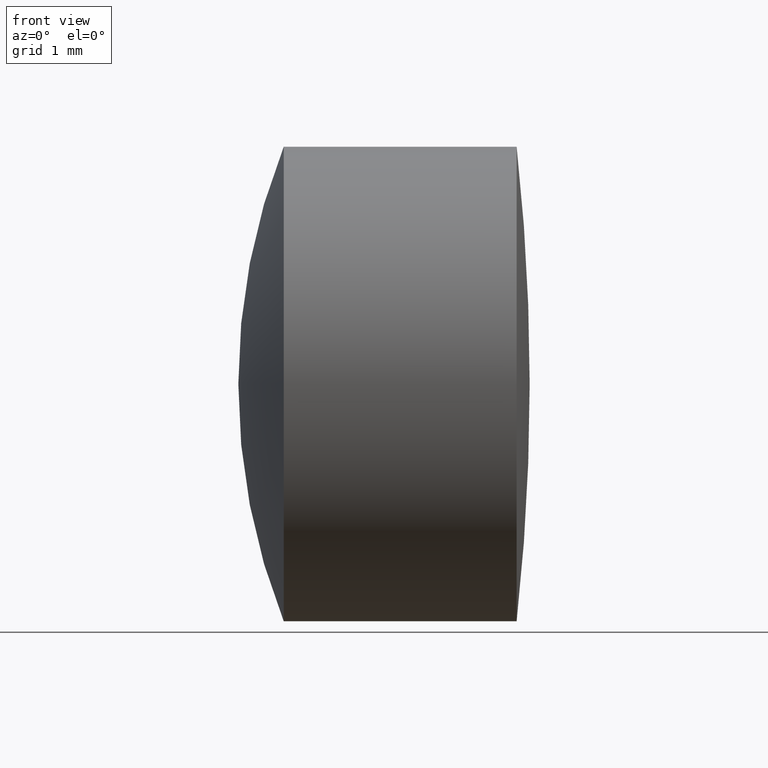
[diagram: clean part render]
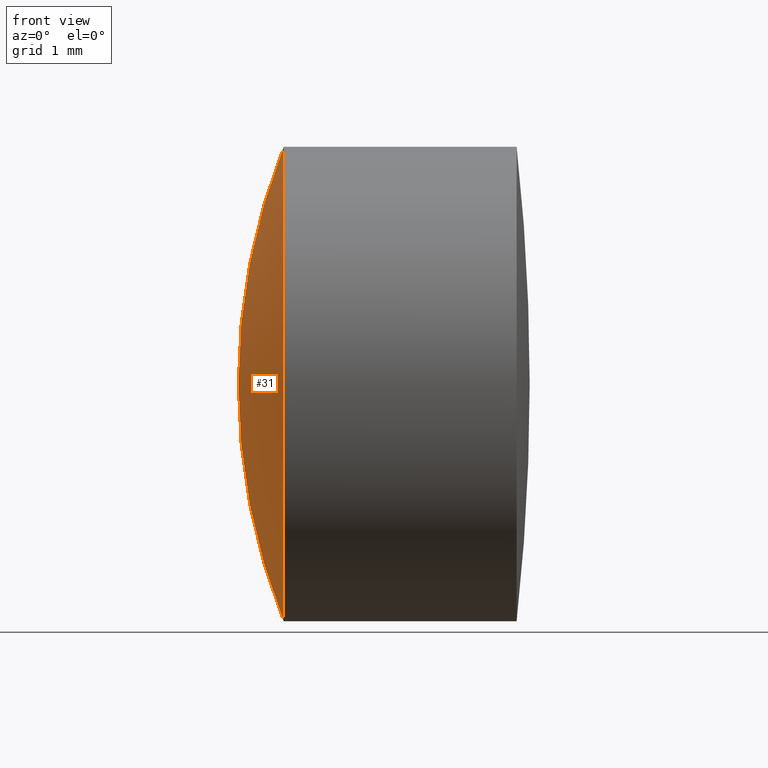
[diagram: same view with one face highlighted and labeled with its STEP entity id]
A machine part, front view. The second image highlights one B-rep face of the part: STEP entity #31.
In plain terms, the highlighted spherical surface has radius 8.6 mm.
Its self-contained STEP definition (entity closure, byte-faithful):
#4 = FACE_OUTER_BOUND ( 'NONE', #145, .T. ) ;
#17 = DIRECTION ( 'NONE',  ( -1.000000000000000000, -0.0000000000000000000, -0.0000000000000000000 ) ) ;
#31 = ADVANCED_FACE ( 'NONE', ( #4 ), #292, .T. ) ;
#38 = DIRECTION ( 'NONE',  ( -0.0000000000000000000, -1.000000000000000000, -0.0000000000000000000 ) ) ;
#45 = DIRECTION ( 'NONE',  ( 0.0000000000000000000, 1.224646799147353200E-016, -1.000000000000000000 ) ) ;
#46 = VERTEX_POINT ( 'NONE', #253 ) ;
#64 = VERTEX_POINT ( 'NONE', #124 ) ;
#70 = CARTESIAN_POINT ( 'NONE',  ( 268.5807127546710800, 0.0000000000000000000, 7.729108157225100800E-017 ) ) ;
#72 = CARTESIAN_POINT ( 'NONE',  ( 268.5807127546710800, 0.0000000000000000000, 7.729108157225100800E-017 ) ) ;
#92 = AXIS2_PLACEMENT_3D ( 'NONE', #158, #215, #45 ) ;
#96 = DIRECTION ( 'NONE',  ( 0.0000000000000000000, 0.0000000000000000000, 1.000000000000000000 ) ) ;
#122 = CIRCLE ( 'NONE', #236, 8.600000000000001400 ) ;
#124 = CARTESIAN_POINT ( 'NONE',  ( 260.5882553728641800, 0.0000000000000000000, -3.174999999999998500 ) ) ;
#125 = ORIENTED_EDGE ( 'NONE', *, *, #154, .T. ) ;
#145 = EDGE_LOOP ( 'NONE', ( #277, #125, #193 ) ) ;
#154 = EDGE_CURVE ( 'NONE', #46, #217, #337, .T. ) ;
#158 = CARTESIAN_POINT ( 'NONE',  ( 268.5807127546710800, 0.0000000000000000000, 7.729108157225100800E-017 ) ) ;
#176 = DIRECTION ( 'NONE',  ( 0.0000000000000000000, 0.0000000000000000000, 1.000000000000000000 ) ) ;
#192 = AXIS2_PLACEMENT_3D ( 'NONE', #206, #17, #176 ) ;
#193 = ORIENTED_EDGE ( 'NONE', *, *, #304, .F. ) ;
#206 = CARTESIAN_POINT ( 'NONE',  ( 260.5882553728641800, 0.0000000000000000000, 0.0000000000000000000 ) ) ;
#215 = DIRECTION ( 'NONE',  ( 0.0000000000000000000, -1.000000000000000000, -1.224646799147353200E-016 ) ) ;
#217 = VERTEX_POINT ( 'NONE', #242 ) ;
#233 = DIRECTION ( 'NONE',  ( 0.0000000000000000000, 1.000000000000000000, -0.0000000000000000000 ) ) ;
#236 = AXIS2_PLACEMENT_3D ( 'NONE', #72, #233, #96 ) ;
#242 = CARTESIAN_POINT ( 'NONE',  ( 259.9807127546711200, 0.0000000000000000000, -4.493070420611109600E-016 ) ) ;
#244 = AXIS2_PLACEMENT_3D ( 'NONE', #70, #38, #334 ) ;
#253 = CARTESIAN_POINT ( 'NONE',  ( 260.5882553728641800, -3.888253587292844600E-016, 3.174999999999998500 ) ) ;
#277 = ORIENTED_EDGE ( 'NONE', *, *, #296, .T. ) ;
#279 = CIRCLE ( 'NONE', #192, 3.174999999999999800 ) ;
#292 = SPHERICAL_SURFACE ( 'NONE', #244, 8.600000000000001400 ) ;
#296 = EDGE_CURVE ( 'NONE', #64, #46, #279, .T. ) ;
#304 = EDGE_CURVE ( 'NONE', #64, #217, #122, .T. ) ;
#334 = DIRECTION ( 'NONE',  ( 0.0000000000000000000, 0.0000000000000000000, -1.000000000000000000 ) ) ;
#337 = CIRCLE ( 'NONE', #92, 8.600000000000001400 ) ;